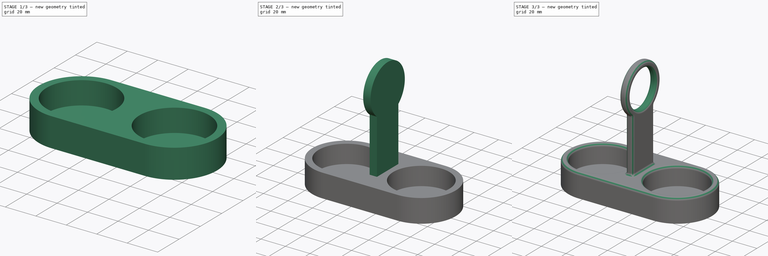
[diagram: build sequence overview — one tinted view per stage of 3, left to right]
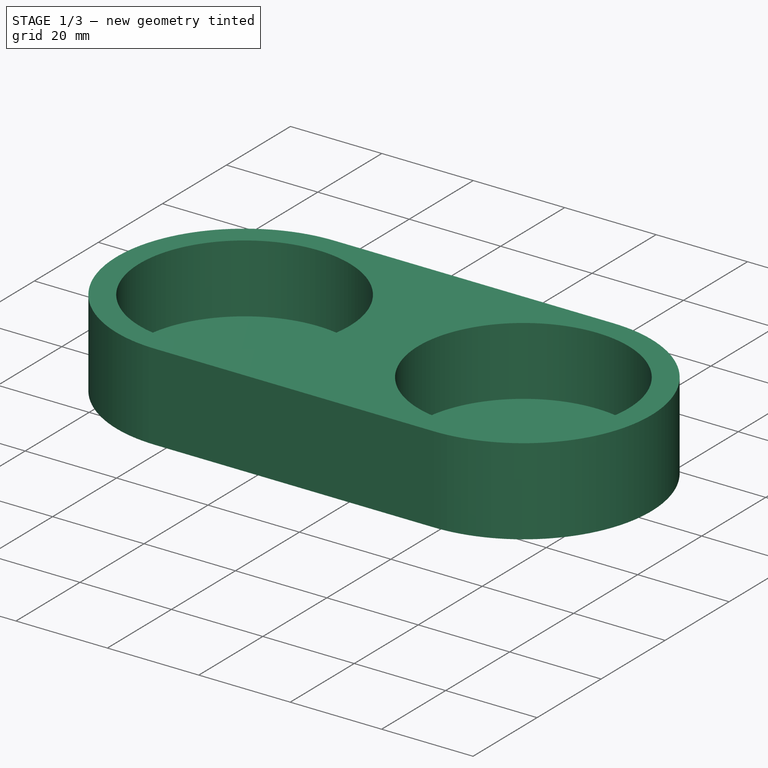
[diagram: stage 1 of 3 — iso view after this stage's code; geometry added in this stage tinted green]
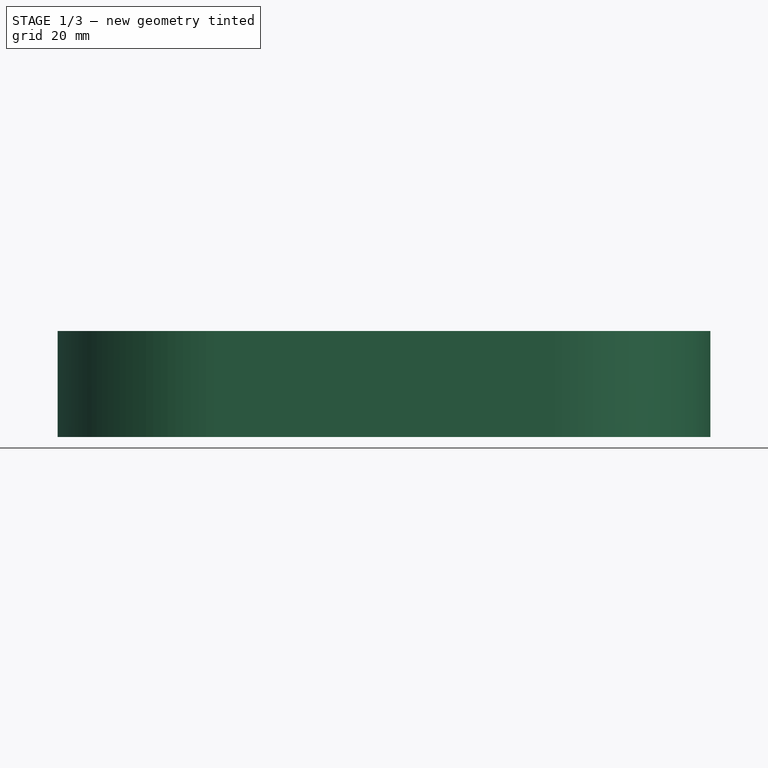
[diagram: stage 1 of 3 — front view after this stage's code; geometry added in this stage tinted green]
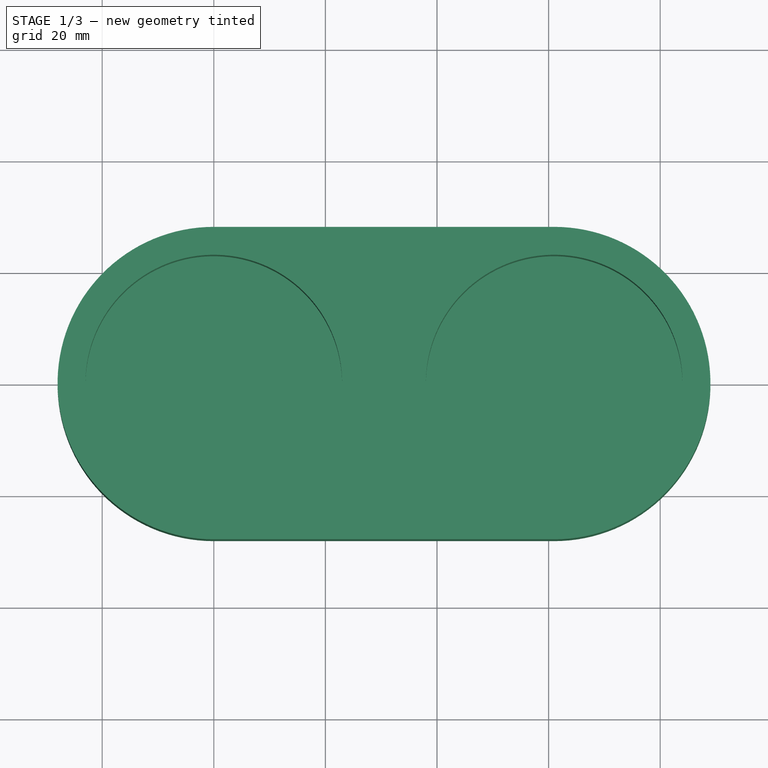
[diagram: stage 1 of 3 — top view after this stage's code; geometry added in this stage tinted green]
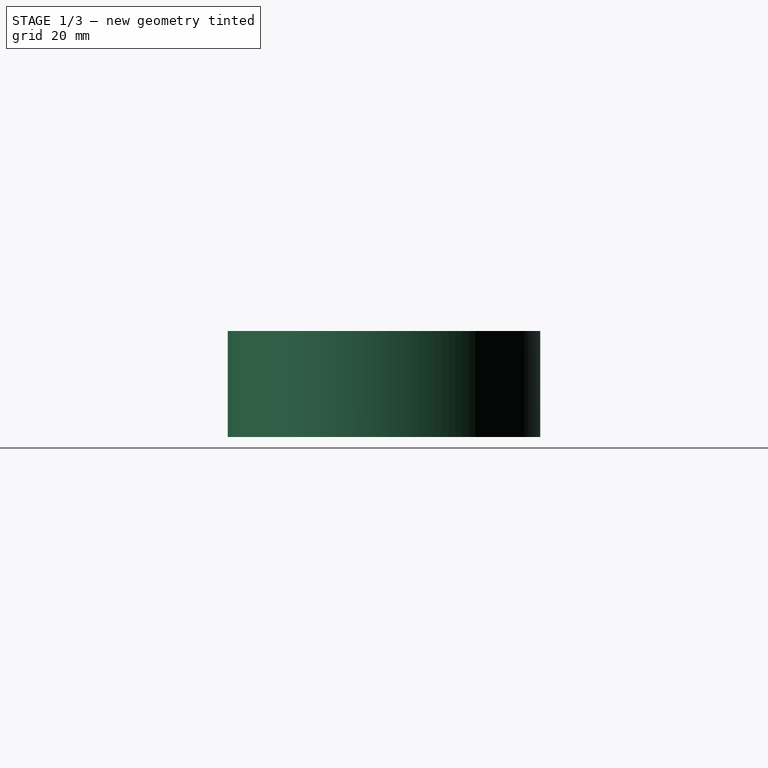
[diagram: stage 1 of 3 — right view after this stage's code; geometry added in this stage tinted green]
FCSTD DOCUMENT  (FreeCAD 0.16RUnknown)
Label: PepperStand
License: All rights reserved
LicenseURL: http://en.wikipedia.org/wiki/All_rights_reserved
objects: Sketcher::SketchObject×5, PartDesign::Pad×4, PartDesign::Pocket×1, PartDesign::Fillet×1
note: 16 computed .brp shape members not serialized (recipe doc carries the construction recipe); baked Part::Feature solids carry a one-line shape summary decoded from their .brp

FEATURE [Sketcher::SketchObject] Sketch
  sketch-geometry (6):
    g0: LineSegment StartX=0 StartY=28 StartZ=0 EndX=61 EndY=28 EndZ=0
    g1: LineSegment StartX=0 StartY=-28 StartZ=0 EndX=61 EndY=-28 EndZ=0
    g2: ArcOfCircle CenterX=0 CenterY=0 CenterZ=0 NormalX=0 NormalY=0 NormalZ=1 Radius=28 StartAngle=1.5708 EndAngle=4.71239
    g3: ArcOfCircle CenterX=61 CenterY=0 CenterZ=0 NormalX=0 NormalY=0 NormalZ=1 Radius=28 StartAngle=4.71239 EndAngle=7.85398
    g4: LineSegment [constr] StartX=61 StartY=28 StartZ=0 EndX=61 EndY=-28 EndZ=0
    g5: LineSegment [constr] StartX=-28 StartY=0 StartZ=0 EndX=-23 EndY=0 EndZ=0
  constraints (19):
    c: PointOnObject(g0,g-2)
    c: Horizontal(g0)
    c: PointOnObject(g1,g-2)
    c: Horizontal(g1)
    c: Coincident(g2,g-1)
    c: Coincident(g2,g1)
    c: Coincident(g2,g0)
    c: PointOnObject(g3,g-1)
    c: Coincident(g3,g0)
    c: Coincident(g3,g1)
    c: Coincident(g4,g0)
    c: Coincident(g4,g1)
    c: Vertical(g4)
    c: PointOnObject(g3,g4)
    c: DistanceX(g0,g0) = 61
    c: PointOnObject(g5,g-1)
    c: PointOnObject(g5,g-1)
    c: PointOnObject(g5,g2)
    c: DistanceX(g5,g5) = 5
FEATURE [PartDesign::Pad] Pad
  Length = 4
  Length2 = 100
  Sketch = -> Sketch
  Type = 0
FEATURE [Sketcher::SketchObject] Sketch001
  Placement = pos=(0,0,4) rot=(0,0,1;0rad)
  Support = -> Pad [Face6]
  sketch-geometry (8):
    g0: LineSegment StartX=0 StartY=28 StartZ=0 EndX=61 EndY=28 EndZ=0
    g1: LineSegment StartX=0 StartY=-28 StartZ=0 EndX=61 EndY=-28 EndZ=0
    g2: ArcOfCircle CenterX=0 CenterY=0 CenterZ=0 NormalX=0 NormalY=0 NormalZ=1 Radius=28 StartAngle=1.5708 EndAngle=4.71239
    g3: ArcOfCircle CenterX=61 CenterY=0 CenterZ=0 NormalX=0 NormalY=0 NormalZ=1 Radius=28 StartAngle=4.71239 EndAngle=7.85398
    g4: LineSegment [constr] StartX=61 StartY=28 StartZ=0 EndX=61 EndY=-28 EndZ=0
    g5: Circle CenterX=0 CenterY=0 CenterZ=0 NormalX=0 NormalY=0 NormalZ=1 Radius=23
    g6: Circle CenterX=61 CenterY=0 CenterZ=0 NormalX=0 NormalY=0 NormalZ=1 Radius=23
    g7: LineSegment [constr] StartX=-28 StartY=0 StartZ=0 EndX=-23 EndY=0 EndZ=0
  constraints (24):
    c: PointOnObject(g0,g-2)
    c: Horizontal(g0)
    c: PointOnObject(g1,g-2)
    c: Horizontal(g1)
    c: Coincident(g2,g-1)
    c: Coincident(g2,g1)
    c: Coincident(g2,g0)
    c: PointOnObject(g3,g-1)
    c: Coincident(g3,g0)
    c: Coincident(g3,g1)
    c: Coincident(g4,g0)
    c: Coincident(g4,g1)
    c: Vertical(g4)
    c: PointOnObject(g3,g4)
    c: Coincident(g5,g-1)
    c: Radius(g5) = 23
    c: Equal(g5,g6) = 23
    c: Coincident(g6,g3)
    c: DistanceX(g0,g0) = 61
    c: PointOnObject(g7,g-1)
    c: PointOnObject(g7,g-1)
    c: PointOnObject(g7,g2)
    c: PointOnObject(g7,g5)
    c: DistanceX(g7,g7) = 5
FEATURE [PartDesign::Pad] Pad001
  Length = 15
  Length2 = 100
  Sketch = -> Sketch001
  Type = 0
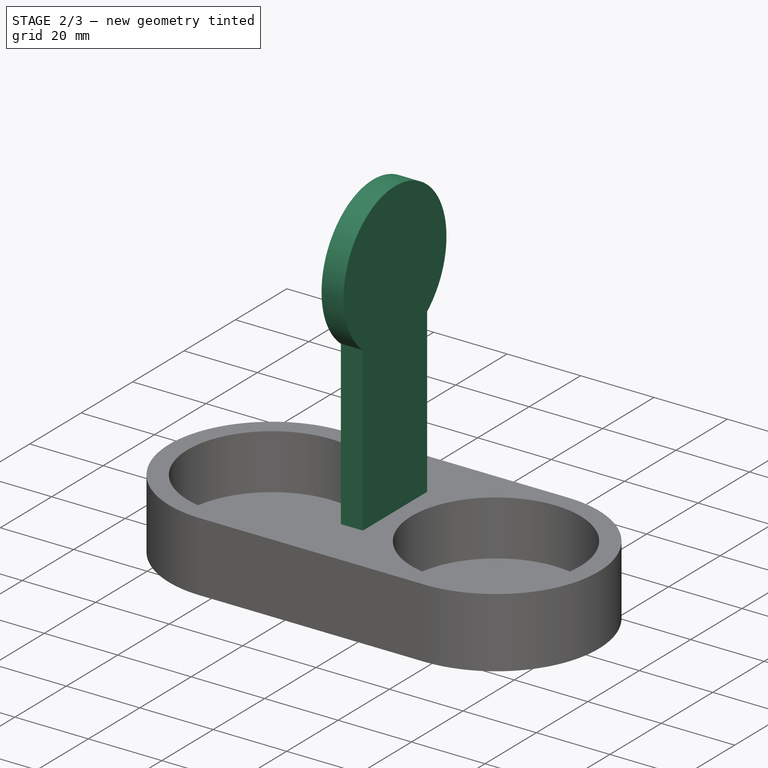
[diagram: stage 2 of 3 — iso view after this stage's code; geometry added in this stage tinted green]
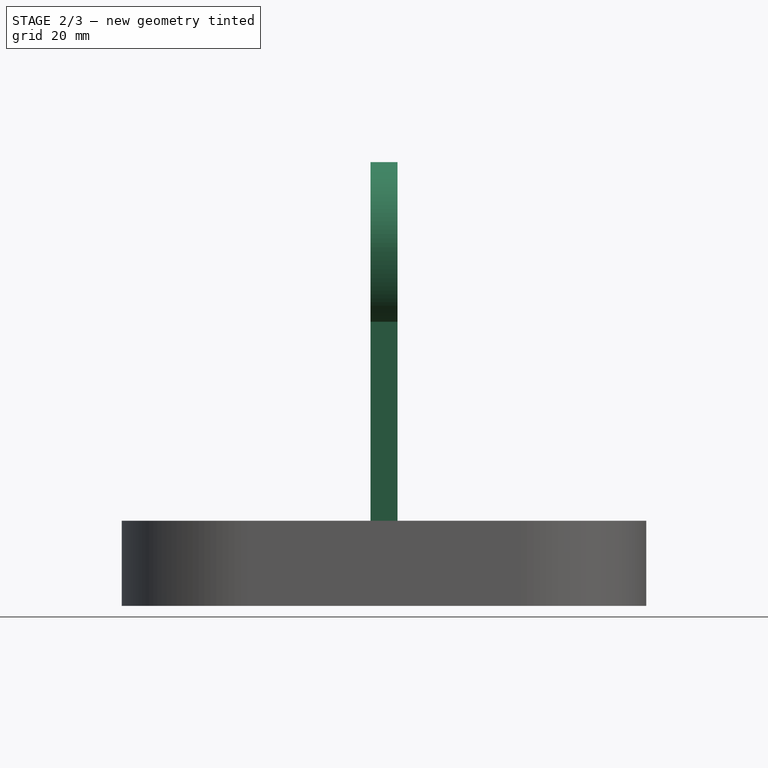
[diagram: stage 2 of 3 — front view after this stage's code; geometry added in this stage tinted green]
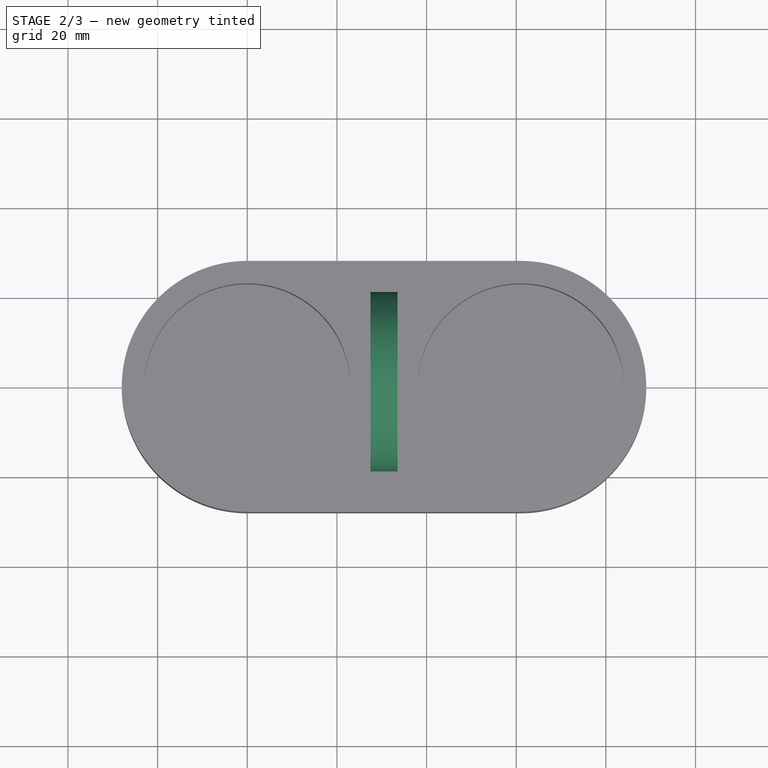
[diagram: stage 2 of 3 — top view after this stage's code; geometry added in this stage tinted green]
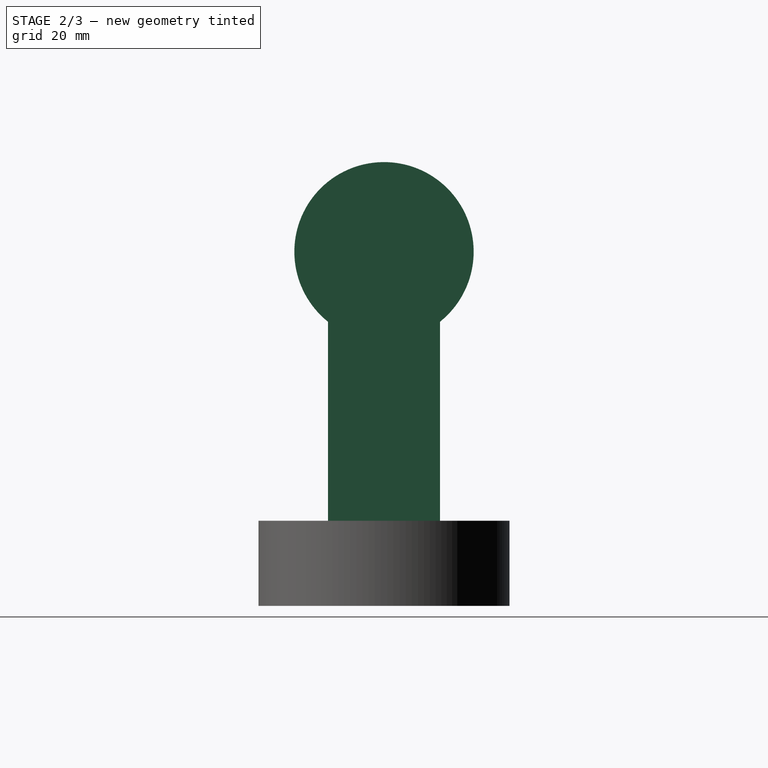
[diagram: stage 2 of 3 — right view after this stage's code; geometry added in this stage tinted green]
FEATURE [Sketcher::SketchObject] Sketch002
  ExternalGeometry = -> [Pad001]
  Placement = pos=(0,0,19) rot=(0,0,1;0rad)
  Support = -> Pad001 [Face10]
  sketch-geometry (9):
    g0: LineSegment [constr] StartX=61 StartY=28 StartZ=0 EndX=61 EndY=-28 EndZ=0
    g1: LineSegment [constr] StartX=-28 StartY=0 StartZ=0 EndX=-23 EndY=0 EndZ=0
    g2: LineSegment StartX=27.5 StartY=12.5 StartZ=0 EndX=33.5 EndY=12.5 EndZ=0
    g3: LineSegment StartX=33.5 StartY=12.5 StartZ=0 EndX=33.5 EndY=-12.5 EndZ=0
    g4: LineSegment StartX=33.5 StartY=-12.5 StartZ=0 EndX=27.5 EndY=-12.5 EndZ=0
    g5: LineSegment StartX=27.5 StartY=-12.5 StartZ=0 EndX=27.5 EndY=12.5 EndZ=0
    g6: GeomPoint [constr] X=27.5 Y=0 Z=0
    g7: LineSegment [constr] StartX=33.5 StartY=-0.132624 StartZ=0 EndX=61 EndY=-0.132624 EndZ=0
    g8: LineSegment [constr] StartX=27.5 StartY=0 StartZ=0 EndX=0 EndY=0 EndZ=0
  constraints (24):
    c: Vertical(g0)
    c: PointOnObject(g1,g-1)
    c: PointOnObject(g1,g-1)
    c: DistanceX(g1,g1) = 5
    c: Coincident(g2,g3)
    c: Coincident(g3,g4)
    c: Coincident(g4,g5)
    c: Coincident(g5,g2)
    c: Horizontal(g2)
    c: Horizontal(g4)
    c: Vertical(g3)
    c: Vertical(g5)
    c: PointOnObject(g6,g5)
    c: Symmetric(g2,g4,g6)
    c: PointOnObject(g6,g-1)
    c: DistanceX(g2,g2) = 6
    c: PointOnObject(g7,g3)
    c: Horizontal(g7)
    c: Coincident(g8,g6)
    c: Coincident(g8,g-1)
    c: Equal(g8,g7)
    c: PointOnObject(g7,g0)
    c: Coincident(g0,g-4)
    c: DistanceY(g3,g3) = 25
FEATURE [PartDesign::Pad] Pad002
  Length = 60
  Length2 = 100
  Sketch = -> Sketch002
  Type = 0
FEATURE [Sketcher::SketchObject] Sketch003
  ExternalGeometry = -> [Pad002]
  Placement = pos=(27.5,0,0) rot=(0.57735,-0.57735,-0.57735;2.0944rad)
  Support = -> Pad002 [Face14]
  sketch-geometry (2):
    g0: GeomPoint [constr] X=0 Y=79 Z=0
    g1: Circle CenterX=0 CenterY=79 CenterZ=0 NormalX=0 NormalY=0 NormalZ=1 Radius=20
  constraints (4):
    c: PointOnObject(g0,g-2)
    c: PointOnObject(g0,g-3)
    c: Coincident(g1,g0)
    c: Radius(g1) = 20
FEATURE [PartDesign::Pad] Pad003
  Length = 6
  Length2 = 100
  Reversed = true
  Sketch = -> Sketch003
  Type = 0
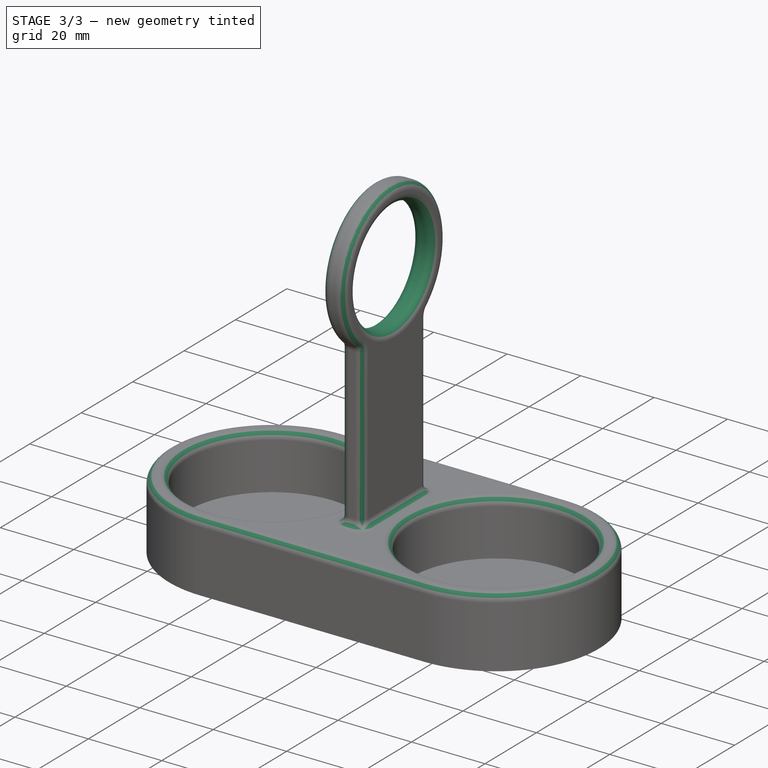
[diagram: stage 3 of 3 — iso view after this stage's code; geometry added in this stage tinted green]
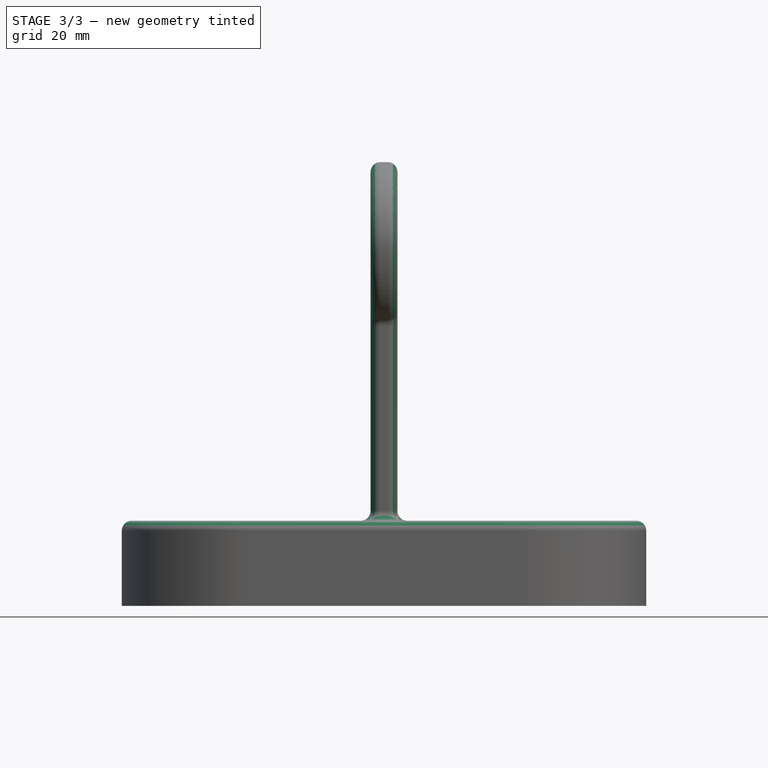
[diagram: stage 3 of 3 — front view after this stage's code; geometry added in this stage tinted green]
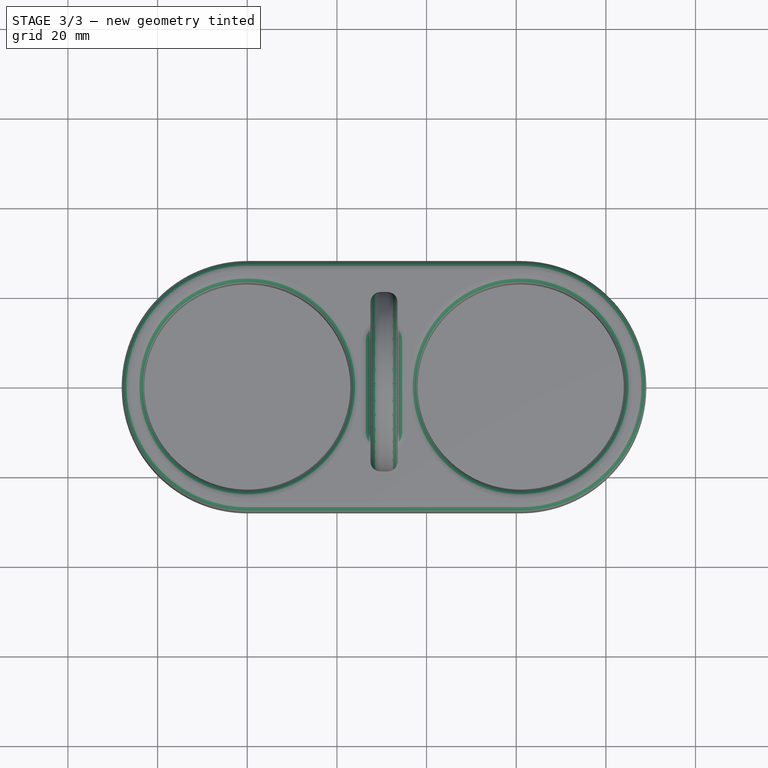
[diagram: stage 3 of 3 — top view after this stage's code; geometry added in this stage tinted green]
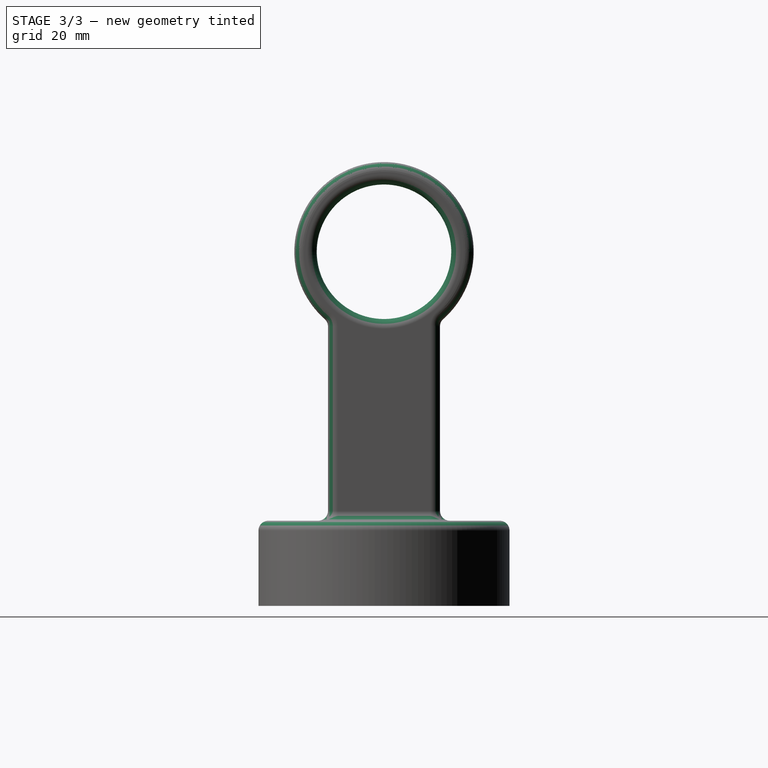
[diagram: stage 3 of 3 — right view after this stage's code; geometry added in this stage tinted green]
FEATURE [Sketcher::SketchObject] Sketch004
  ExternalGeometry = -> [Pad003]
  Placement = pos=(27.5,0,0) rot=(0.57735,-0.57735,-0.57735;2.0944rad)
  Support = -> Pad003 [Face20]
  sketch-geometry (2):
    g0: GeomPoint [constr] X=0 Y=79 Z=0
    g1: Circle CenterX=0 CenterY=79 CenterZ=0 NormalX=0 NormalY=0 NormalZ=1 Radius=15
  constraints (4):
    c: PointOnObject(g0,g-2)
    c: PointOnObject(g0,g-3)
    c: Coincident(g1,g0)
    c: Radius(g1) = 15
FEATURE [PartDesign::Pocket] Pocket
  Length = 6
  Sketch = -> Sketch004
  Type = 0
FEATURE [PartDesign::Fillet] Fillet
  Base = -> Pocket [Edge24,Edge34,Edge35,Edge32,Edge14,Edge16,Edge20,Edge19,Edge21,Edge22,Edge23,Edge25,Edge26,Edge29,Edge30,Edge31,Edge36,Edge48,Edge49,Edge41,Edge50,Edge51,Edge39,Edge43,Edge52,Edge46,Edge53,Edge40,Edge47,Edge45,Edge44,Edge33]
  Radius = 2.2
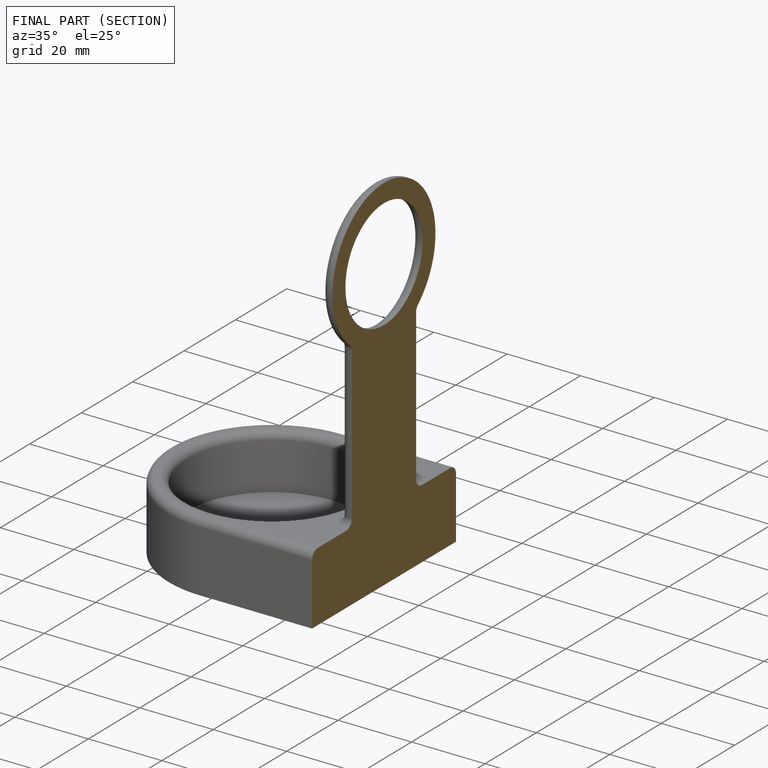
[diagram: finished part — half-section view (interior)]
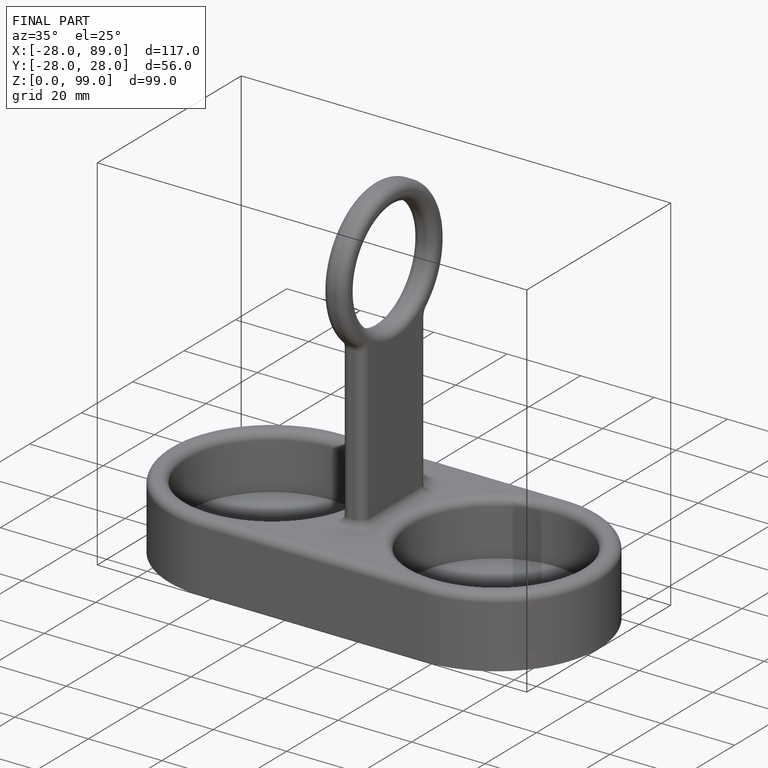
[diagram: finished part — iso view with bounding-box wireframe]
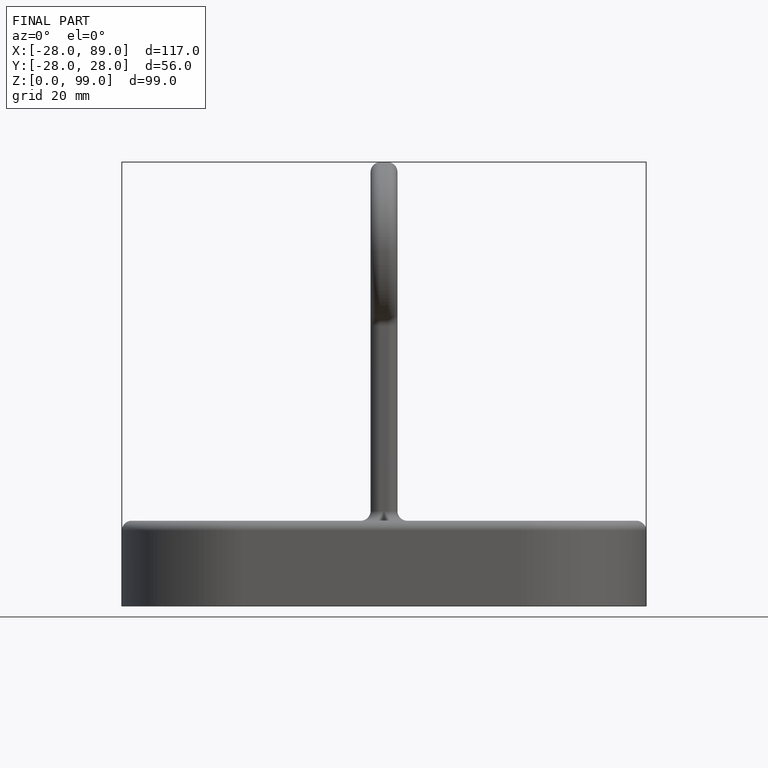
[diagram: finished part — front view with bounding-box wireframe]
